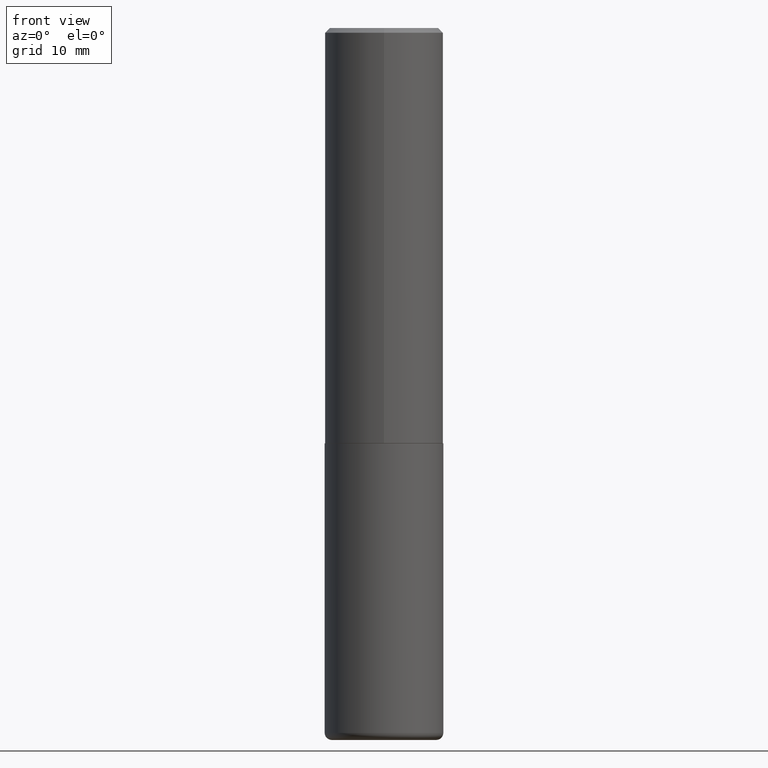
[diagram: clean part render]
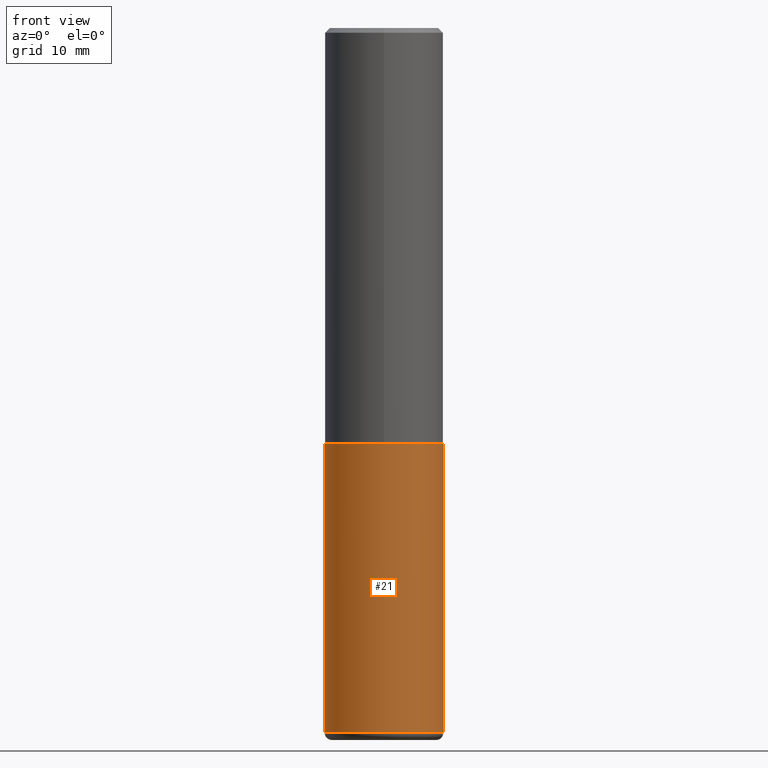
[diagram: same view with one face highlighted and labeled with its STEP entity id]
A machine part, front view. The second image highlights one B-rep face of the part: STEP entity #21.
In plain terms, the highlighted cylindrical surface (partial cylindrical patch) has radius 6.35 mm, axis along (-0, 0, 1).
Its self-contained STEP definition (entity closure, byte-faithful):
#12 = CYLINDRICAL_SURFACE ( 'NONE', #223, 0.2500000000000000000 ) ;
#18 = DIRECTION ( 'NONE',  ( 1.000000000000000000, -6.982962677686266711E-15, 4.876176775795935793E-29 ) ) ;
#21 = ADVANCED_FACE ( 'NONE', ( #148 ), #12, .T. ) ;
#27 = CARTESIAN_POINT ( 'NONE',  ( -0.2499999999999998612, -8.593342736963892519E-15, -2.970000000000000195 ) ) ;
#32 = AXIS2_PLACEMENT_3D ( 'NONE', #239, #317, #313 ) ;
#75 = CIRCLE ( 'NONE', #314, 0.2500000000000000000 ) ;
#81 = VECTOR ( 'NONE', #348, 39.37007874015748143 ) ;
#88 = DIRECTION ( 'NONE',  ( -2.445468806185136597E-29, 3.491481338843145583E-15, 1.000000000000000000 ) ) ;
#104 = CARTESIAN_POINT ( 'NONE',  ( 0.2500000000000000000, -7.855833012397072137E-15, -1.750000000000000222 ) ) ;
#120 = CARTESIAN_POINT ( 'NONE',  ( -0.2500000000000000000, -6.463539120269572968E-15, -1.750000000000000222 ) ) ;
#139 = CARTESIAN_POINT ( 'NONE',  ( -0.2500000000000000000, 1.776356839400250465E-15, -1.229733772563726445E-29 ) ) ;
#140 = ORIENTED_EDGE ( 'NONE', *, *, #259, .F. ) ;
#148 = FACE_OUTER_BOUND ( 'NONE', #333, .T. ) ;
#151 = LINE ( 'NONE', #139, #268 ) ;
#156 = VERTEX_POINT ( 'NONE', #175 ) ;
#157 = CARTESIAN_POINT ( 'NONE',  ( 0.2500000000000000000, -1.745740669421566678E-15, 1.219044193948983948E-29 ) ) ;
#167 = ORIENTED_EDGE ( 'NONE', *, *, #283, .F. ) ;
#175 = CARTESIAN_POINT ( 'NONE',  ( 0.2499999999999998612, -1.211544024578571124E-14, -2.970000000000000195 ) ) ;
#183 = EDGE_CURVE ( 'NONE', #156, #381, #295, .T. ) ;
#187 = DIRECTION ( 'NONE',  ( -2.445468806185136877E-29, 3.491481338843145188E-15, 1.000000000000000000 ) ) ;
#190 = CARTESIAN_POINT ( 'NONE',  ( 7.263042354369856275E-29, -1.036969957636414298E-14, -2.970000000000000195 ) ) ;
#209 = VERTEX_POINT ( 'NONE', #120 ) ;
#213 = DIRECTION ( 'NONE',  ( 1.000000000000000000, -6.982962677686270655E-15, 0.000000000000000000 ) ) ;
#223 = AXIS2_PLACEMENT_3D ( 'NONE', #235, #282, #18 ) ;
#235 = CARTESIAN_POINT ( 'NONE',  ( 0.000000000000000000, 0.000000000000000000, 0.000000000000000000 ) ) ;
#239 = CARTESIAN_POINT ( 'NONE',  ( 4.279570410823989044E-29, -6.110092342975505460E-15, -1.750000000000000222 ) ) ;
#253 = CIRCLE ( 'NONE', #32, 0.2500000000000000000 ) ;
#259 = EDGE_CURVE ( 'NONE', #209, #381, #253, .T. ) ;
#268 = VECTOR ( 'NONE', #187, 39.37007874015748143 ) ;
#282 = DIRECTION ( 'NONE',  ( -2.445468806185136597E-29, 3.491481338843145583E-15, 1.000000000000000000 ) ) ;
#283 = EDGE_CURVE ( 'NONE', #360, #209, #151, .T. ) ;
#295 = LINE ( 'NONE', #157, #81 ) ;
#313 = DIRECTION ( 'NONE',  ( 1.000000000000000000, -6.982962677686266711E-15, 0.000000000000000000 ) ) ;
#314 = AXIS2_PLACEMENT_3D ( 'NONE', #190, #88, #213 ) ;
#317 = DIRECTION ( 'NONE',  ( -2.445468806185136597E-29, 3.491481338843145583E-15, 1.000000000000000000 ) ) ;
#333 = EDGE_LOOP ( 'NONE', ( #167, #364, #338, #140 ) ) ;
#338 = ORIENTED_EDGE ( 'NONE', *, *, #183, .T. ) ;
#346 = EDGE_CURVE ( 'NONE', #360, #156, #75, .T. ) ;
#348 = DIRECTION ( 'NONE',  ( -2.445468806185136877E-29, 3.491481338843145188E-15, 1.000000000000000000 ) ) ;
#360 = VERTEX_POINT ( 'NONE', #27 ) ;
#364 = ORIENTED_EDGE ( 'NONE', *, *, #346, .T. ) ;
#381 = VERTEX_POINT ( 'NONE', #104 ) ;